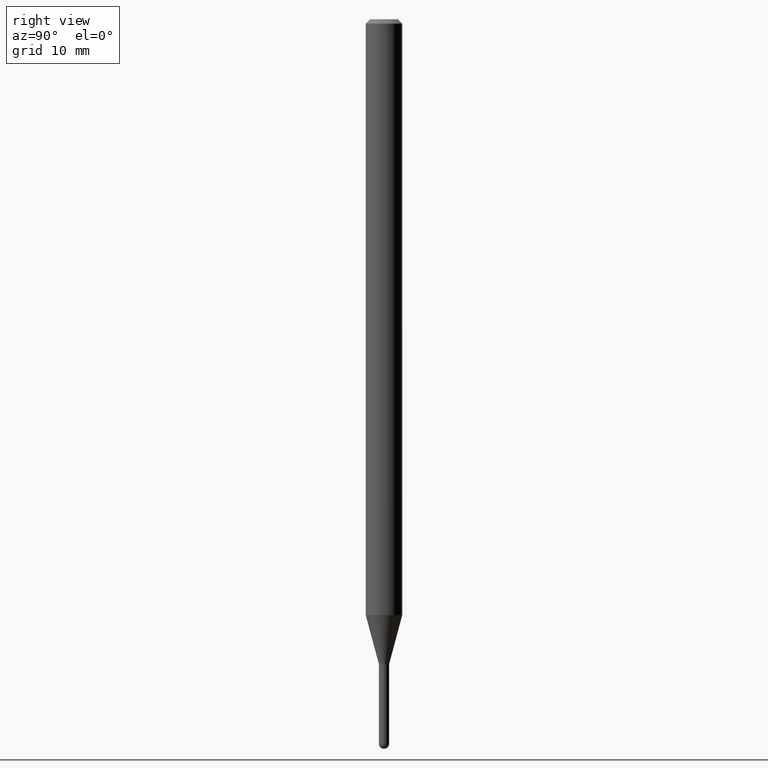
[diagram: clean part render]
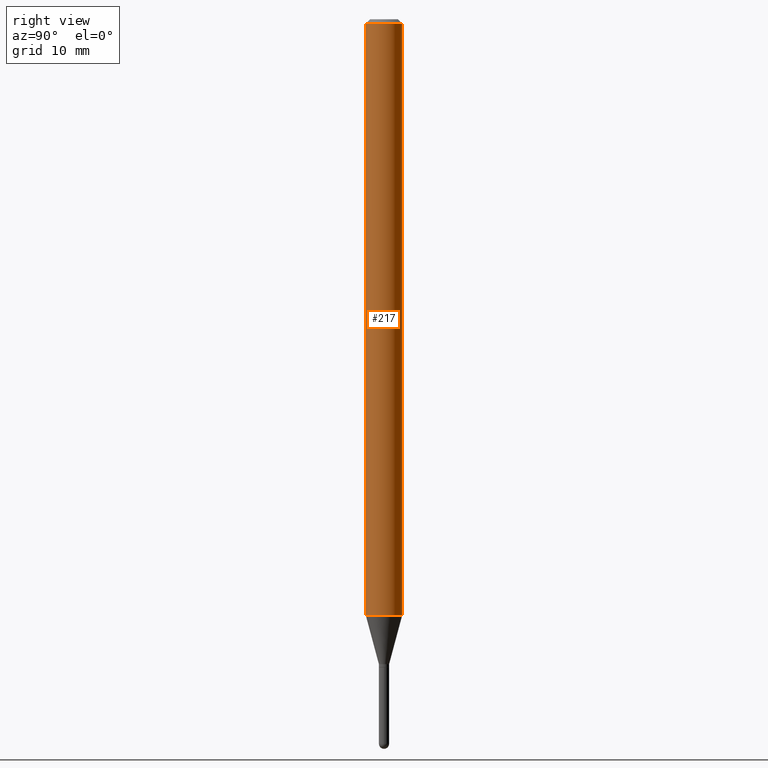
[diagram: same view with one face highlighted and labeled with its STEP entity id]
A machine part, right view. The second image highlights one B-rep face of the part: STEP entity #217.
In plain terms, the highlighted cylindrical surface (edge-blend (fillet) strip) has radius 1.5875 mm, axis along (-0, 0, 1).
Its self-contained STEP definition (entity closure, byte-faithful):
#8 = VERTEX_POINT ( 'NONE', #353 ) ;
#22 = DIRECTION ( 'NONE',  ( -6.982962677686265922E-15, -1.000000000000000000, 3.491522799539868353E-15 ) ) ;
#23 = EDGE_CURVE ( 'NONE', #135, #8, #311, .T. ) ;
#36 = ORIENTED_EDGE ( 'NONE', *, *, #264, .F. ) ;
#50 = VECTOR ( 'NONE', #70, 39.37007874015748143 ) ;
#59 = AXIS2_PLACEMENT_3D ( 'NONE', #104, #257, #68 ) ;
#62 = EDGE_CURVE ( 'NONE', #181, #135, #384, .T. ) ;
#68 = DIRECTION ( 'NONE',  ( -6.982962677686265922E-15, -1.000000000000000000, 3.483106191921935554E-15 ) ) ;
#70 = DIRECTION ( 'NONE',  ( -2.445439854335356088E-29, 3.491522799539868353E-15, 1.000000000000000000 ) ) ;
#95 = CARTESIAN_POINT ( 'NONE',  ( 4.440892098501123144E-16, 0.06249999999999285294, -2.042057713659399809 ) ) ;
#96 = CYLINDRICAL_SURFACE ( 'NONE', #242, 0.06250000000000000000 ) ;
#102 = CARTESIAN_POINT ( 'NONE',  ( -4.364351673553912750E-16, -0.06250000000000005551, -0.01500000000000011047 ) ) ;
#104 = CARTESIAN_POINT ( 'NONE',  ( 3.668159781503114515E-31, -5.237284199309917136E-17, -0.01500000000000032904 ) ) ;
#105 = ORIENTED_EDGE ( 'NONE', *, *, #62, .T. ) ;
#113 = DIRECTION ( 'NONE',  ( -2.445439854335356088E-29, 3.491522799539868353E-15, 1.000000000000000000 ) ) ;
#125 = DIRECTION ( 'NONE',  ( -2.445439854335356088E-29, 3.491522799539868353E-15, 1.000000000000000000 ) ) ;
#135 = VERTEX_POINT ( 'NONE', #95 ) ;
#157 = EDGE_LOOP ( 'NONE', ( #105, #315, #36, #184 ) ) ;
#178 = VECTOR ( 'NONE', #113, 39.37007874015748143 ) ;
#181 = VERTEX_POINT ( 'NONE', #269 ) ;
#184 = ORIENTED_EDGE ( 'NONE', *, *, #360, .F. ) ;
#217 = ADVANCED_FACE ( 'NONE', ( #347 ), #96, .T. ) ;
#235 = VERTEX_POINT ( 'NONE', #102 ) ;
#242 = AXIS2_PLACEMENT_3D ( 'NONE', #346, #461, #22 ) ;
#246 = CARTESIAN_POINT ( 'NONE',  ( 4.993729317835632026E-29, -7.129891065218049224E-15, -2.042057713659399365 ) ) ;
#257 = DIRECTION ( 'NONE',  ( -2.445439854335356088E-29, 3.491522799539868353E-15, 1.000000000000000000 ) ) ;
#264 = EDGE_CURVE ( 'NONE', #235, #8, #392, .T. ) ;
#269 = CARTESIAN_POINT ( 'NONE',  ( -4.364351673553418233E-16, -0.06250000000000713318, -2.042057713659398921 ) ) ;
#287 = DIRECTION ( 'NONE',  ( -6.982962677686265922E-15, -1.000000000000000000, 4.370956789862821150E-15 ) ) ;
#311 = LINE ( 'NONE', #470, #178 ) ;
#315 = ORIENTED_EDGE ( 'NONE', *, *, #23, .T. ) ;
#346 = CARTESIAN_POINT ( 'NONE',  ( 0.000000000000000000, 0.000000000000000000, 0.000000000000000000 ) ) ;
#347 = FACE_OUTER_BOUND ( 'NONE', #157, .T. ) ;
#353 = CARTESIAN_POINT ( 'NONE',  ( 4.440892098501129061E-16, 0.06249999999999995837, -0.01500000000000054588 ) ) ;
#360 = EDGE_CURVE ( 'NONE', #181, #235, #454, .T. ) ;
#384 = CIRCLE ( 'NONE', #506, 0.06250000000000000000 ) ;
#392 = CIRCLE ( 'NONE', #59, 0.06250000000000000000 ) ;
#426 = CARTESIAN_POINT ( 'NONE',  ( -4.364351673553916201E-16, -0.06250000000000000000, 2.182201749712417720E-16 ) ) ;
#454 = LINE ( 'NONE', #426, #50 ) ;
#461 = DIRECTION ( 'NONE',  ( -2.445439854335356088E-29, 3.491522799539868353E-15, 1.000000000000000000 ) ) ;
#470 = CARTESIAN_POINT ( 'NONE',  ( 4.440892098500625669E-16, 0.06250000000000000000, -2.182201749712417720E-16 ) ) ;
#506 = AXIS2_PLACEMENT_3D ( 'NONE', #246, #125, #287 ) ;